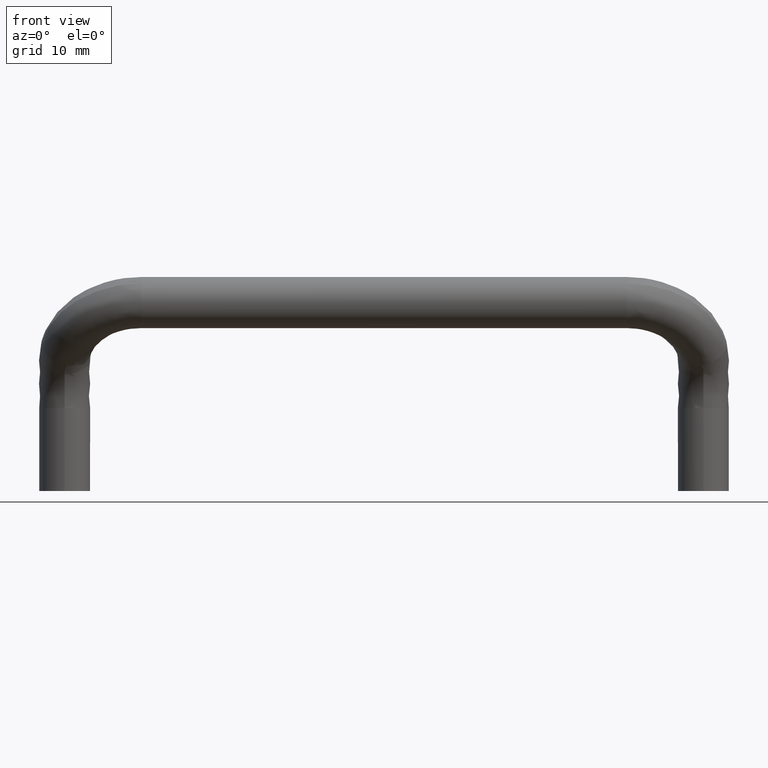
[diagram: clean part render]
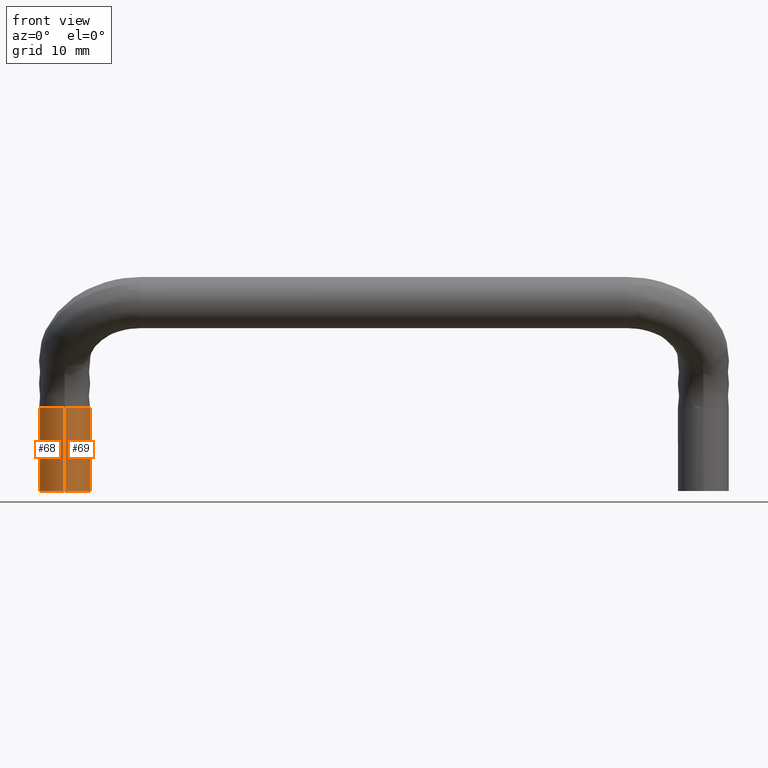
[diagram: same view with one multi-face feature highlighted, each face labeled with its STEP entity id]
A machine part, front view. The highlighted faces form ONE feature: a constant-radius fillet chain: 2 tangent blend faces with common blend radius 4 mm. The faces share edges in the B-rep.
Their STEP definitions:
[1] entity #69 (Cylinder):
#69=ADVANCED_FACE('',(#363),#362,.T.);
#362=CYLINDRICAL_SURFACE('',#866,4.00000000000E+00);
#363=FACE_OUTER_BOUND('',#867,.T.);
#863=CARTESIAN_POINT('',(-5.00000000001E+01,9.99999999999E+00,-1.90000000000E+01));
#864=DIRECTION('',(0.00000000000E+00,-3.23592648403E-13,-1.00000000000E+00));
#865=DIRECTION('',(8.71639498105E-14,-1.00000000000E+00,3.23592648403E-13));
#866=AXIS2_PLACEMENT_3D('',#863,#864,#865);
#867=EDGE_LOOP('',(#999,#1000,#1001,#1002,#1003));
#999=ORIENTED_EDGE('',*,*,#1050,.F.);
#1000=ORIENTED_EDGE('',*,*,#1049,.F.);
#1001=ORIENTED_EDGE('',*,*,#1070,.T.);
#1002=ORIENTED_EDGE('',*,*,#1004,.T.);
#1003=ORIENTED_EDGE('',*,*,#1071,.F.);
#1004=EDGE_CURVE('',#1072,#1073,#1074,.T.);
#1049=EDGE_CURVE('',#1368,#1375,#1376,.T.);
#1050=EDGE_CURVE('',#1375,#1382,#1383,.T.);
#1070=EDGE_CURVE('',#1368,#1072,#1510,.T.);
#1071=EDGE_CURVE('',#1382,#1073,#1516,.T.);
#1072=VERTEX_POINT('',#1522);
#1073=VERTEX_POINT('',#1523);
#1074=CIRCLE('',#1527,4.00000000000E+00);
#1368=VERTEX_POINT('',#1726);
#1375=VERTEX_POINT('',#1730);
#1376=CIRCLE('',#1734,4.00000000000E+00);
#1382=VERTEX_POINT('',#1735);
#1383=CIRCLE('',#1739,4.00000000000E+00);
#1510=(BOUNDED_CURVE() B_SPLINE_CURVE(1,(#1808,#1809),.UNSPECIFIED.,.F.,.F.) B_SPLINE_CURVE_WITH_KNOTS((2,2),(8.33333343261E-02,9.16666667006E-01),.UNSPECIFIED.) CURVE() GEOMETRIC_REPRESENTATION_ITEM() RATIONAL_B_SPLINE_CURVE((1.00000000000E+00,1.00000000000E+00)) REPRESENTATION_ITEM('') );
#1516=(BOUNDED_CURVE() B_SPLINE_CURVE(1,(#1810,#1811),.UNSPECIFIED.,.F.,.F.) B_SPLINE_CURVE_WITH_KNOTS((2,2),(8.33333333335E-02,9.16666666666E-01),.UNSPECIFIED.) CURVE() GEOMETRIC_REPRESENTATION_ITEM() RATIONAL_B_SPLINE_CURVE((7.50000000000E-01,7.50000000000E-01)) REPRESENTATION_ITEM('') );
#1522=CARTESIAN_POINT('',(-5.00000000001E+01,5.99999999999E+00,-2.54999999999E+01));
#1523=CARTESIAN_POINT('',(-5.00000000001E+01,1.40000000000E+01,-2.54999999999E+01));
#1524=CARTESIAN_POINT('',(-5.00000000001E+01,9.99999999999E+00,-2.54999999999E+01));
#1525=DIRECTION('',(2.24207754292E-44,-5.89750470681E-13,1.00000000000E+00));
#1526=DIRECTION('',(-0.00000000000E+00,1.00000000000E+00,5.89750470681E-13));
#1527=AXIS2_PLACEMENT_3D('',#1524,#1525,#1526);
#1726=CARTESIAN_POINT('',(-5.00000000001E+01,6.00000000000E+00,-1.24999999999E+01));
#1730=CARTESIAN_POINT('',(-4.60000000001E+01,1.00000000000E+01,-1.24999999999E+01));
#1731=CARTESIAN_POINT('',(-5.00000000001E+01,1.00000000000E+01,-1.24999999999E+01));
#1732=DIRECTION('',(3.23525928270E-13,0.00000000000E+00,1.00000000000E+00));
#1733=DIRECTION('',(1.00000000000E+00,1.83690953073E-16,-3.23525928270E-13));
#1734=AXIS2_PLACEMENT_3D('',#1731,#1732,#1733);
#1735=CARTESIAN_POINT('',(-5.00000000001E+01,1.40000000000E+01,-1.24999999999E+01));
#1736=CARTESIAN_POINT('',(-5.00000000001E+01,1.00000000000E+01,-1.24999999999E+01));
#1737=DIRECTION('',(3.23525928270E-13,0.00000000000E+00,1.00000000000E+00));
#1738=DIRECTION('',(1.00000000000E+00,1.83690953073E-16,-3.23525928270E-13));
#1739=AXIS2_PLACEMENT_3D('',#1736,#1737,#1738);
#1808=CARTESIAN_POINT('',(-5.00000000001E+01,5.99999999999E+00,-1.25000000154E+01));
#1809=CARTESIAN_POINT('',(-5.00000000001E+01,5.99999999999E+00,-2.55000000052E+01));
#1810=CARTESIAN_POINT('',(-5.00000000001E+01,1.40000000000E+01,-1.24999999999E+01));
#1811=CARTESIAN_POINT('',(-5.00000000001E+01,1.40000000000E+01,-2.54999999999E+01));
[2] entity #68 (Cylinder):
#68=ADVANCED_FACE('',(#353),#352,.T.);
#352=CYLINDRICAL_SURFACE('',#861,4.00000000000E+00);
#353=FACE_OUTER_BOUND('',#862,.T.);
#858=CARTESIAN_POINT('',(-5.00000000001E+01,9.99999999999E+00,-1.90000000000E+01));
#859=DIRECTION('',(0.00000000000E+00,-3.23592648403E-13,-1.00000000000E+00));
#860=DIRECTION('',(8.71639498105E-14,-1.00000000000E+00,3.23592648403E-13));
#861=AXIS2_PLACEMENT_3D('',#858,#859,#860);
#862=EDGE_LOOP('',(#995,#996,#997,#998));
#995=ORIENTED_EDGE('',*,*,#1005,.T.);
#996=ORIENTED_EDGE('',*,*,#1070,.F.);
#997=ORIENTED_EDGE('',*,*,#1052,.F.);
#998=ORIENTED_EDGE('',*,*,#1071,.T.);
#1005=EDGE_CURVE('',#1073,#1072,#1080,.T.);
#1052=EDGE_CURVE('',#1382,#1368,#1395,.T.);
#1070=EDGE_CURVE('',#1368,#1072,#1510,.T.);
#1071=EDGE_CURVE('',#1382,#1073,#1516,.T.);
#1072=VERTEX_POINT('',#1522);
#1073=VERTEX_POINT('',#1523);
#1080=CIRCLE('',#1531,4.00000000000E+00);
#1368=VERTEX_POINT('',#1726);
#1382=VERTEX_POINT('',#1735);
#1395=CIRCLE('',#1746,4.00000000000E+00);
#1510=(BOUNDED_CURVE() B_SPLINE_CURVE(1,(#1808,#1809),.UNSPECIFIED.,.F.,.F.) B_SPLINE_CURVE_WITH_KNOTS((2,2),(8.33333343261E-02,9.16666667006E-01),.UNSPECIFIED.) CURVE() GEOMETRIC_REPRESENTATION_ITEM() RATIONAL_B_SPLINE_CURVE((1.00000000000E+00,1.00000000000E+00)) REPRESENTATION_ITEM('') );
#1516=(BOUNDED_CURVE() B_SPLINE_CURVE(1,(#1810,#1811),.UNSPECIFIED.,.F.,.F.) B_SPLINE_CURVE_WITH_KNOTS((2,2),(8.33333333335E-02,9.16666666666E-01),.UNSPECIFIED.) CURVE() GEOMETRIC_REPRESENTATION_ITEM() RATIONAL_B_SPLINE_CURVE((7.50000000000E-01,7.50000000000E-01)) REPRESENTATION_ITEM('') );
#1522=CARTESIAN_POINT('',(-5.00000000001E+01,5.99999999999E+00,-2.54999999999E+01));
#1523=CARTESIAN_POINT('',(-5.00000000001E+01,1.40000000000E+01,-2.54999999999E+01));
#1528=CARTESIAN_POINT('',(-5.00000000001E+01,9.99999999999E+00,-2.54999999999E+01));
#1529=DIRECTION('',(2.24207754292E-44,-5.89750470681E-13,1.00000000000E+00));
#1530=DIRECTION('',(-0.00000000000E+00,1.00000000000E+00,5.89750470681E-13));
#1531=AXIS2_PLACEMENT_3D('',#1528,#1529,#1530);
#1726=CARTESIAN_POINT('',(-5.00000000001E+01,6.00000000000E+00,-1.24999999999E+01));
#1735=CARTESIAN_POINT('',(-5.00000000001E+01,1.40000000000E+01,-1.24999999999E+01));
#1743=CARTESIAN_POINT('',(-5.00000000001E+01,1.00000000000E+01,-1.24999999999E+01));
#1744=DIRECTION('',(3.23525928270E-13,0.00000000000E+00,1.00000000000E+00));
#1745=DIRECTION('',(1.00000000000E+00,1.83690953073E-16,-3.23525928270E-13));
#1746=AXIS2_PLACEMENT_3D('',#1743,#1744,#1745);
#1808=CARTESIAN_POINT('',(-5.00000000001E+01,5.99999999999E+00,-1.25000000154E+01));
#1809=CARTESIAN_POINT('',(-5.00000000001E+01,5.99999999999E+00,-2.55000000052E+01));
#1810=CARTESIAN_POINT('',(-5.00000000001E+01,1.40000000000E+01,-1.24999999999E+01));
#1811=CARTESIAN_POINT('',(-5.00000000001E+01,1.40000000000E+01,-2.54999999999E+01));